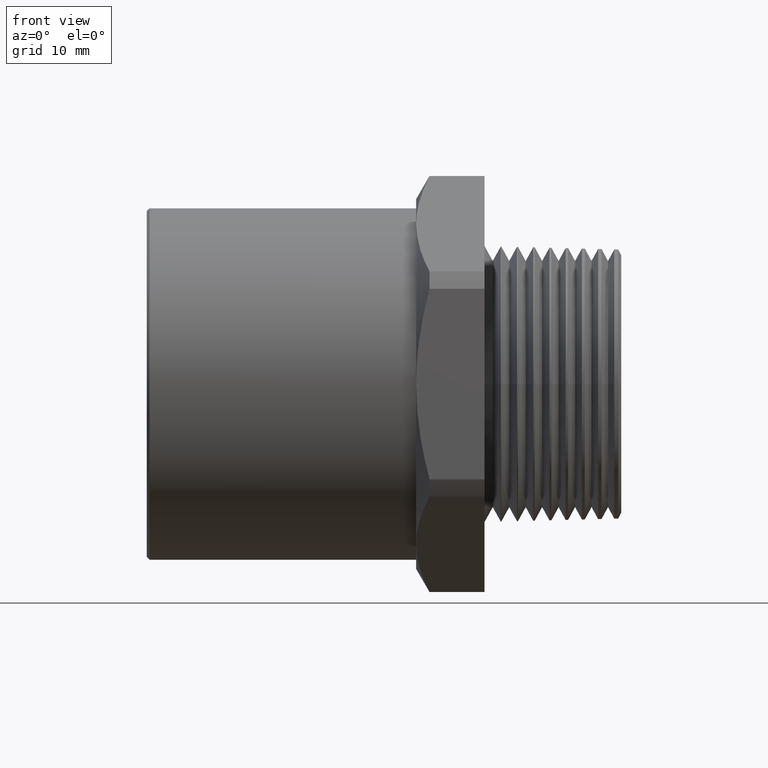
[diagram: clean part render]
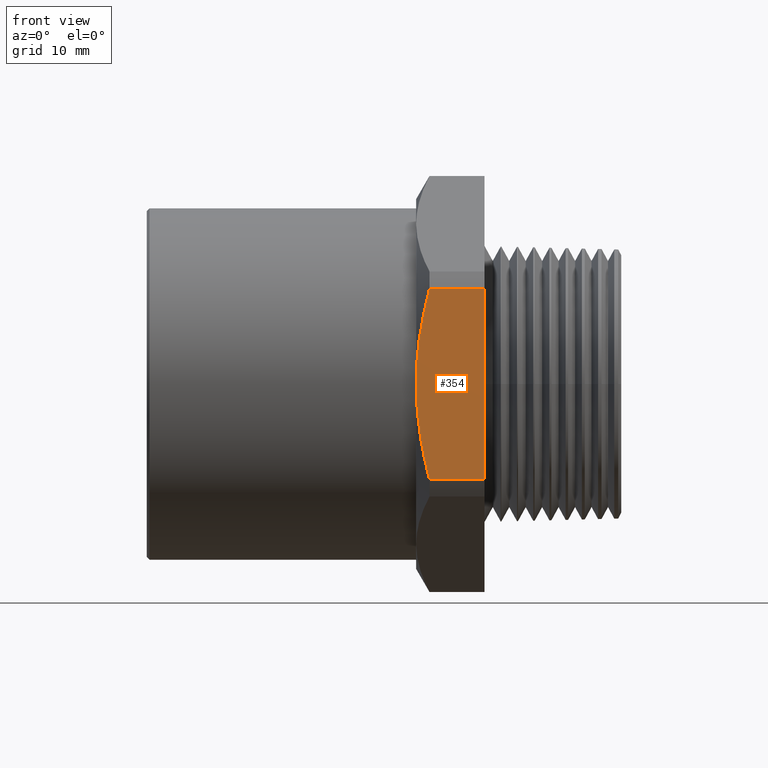
[diagram: same view with one face highlighted and labeled with its STEP entity id]
A machine part, front view. The second image highlights one B-rep face of the part: STEP entity #354.
In plain terms, the highlighted planar face has unit normal (0, 1, 0).
Its self-contained STEP definition (entity closure, byte-faithful):
#319 = EDGE_CURVE ( 'NONE', #347, #345, #1136, .T. ) ;
#330 = VERTEX_POINT ( 'NONE', #1174 ) ;
#345 = VERTEX_POINT ( 'NONE', #1151 ) ;
#347 = VERTEX_POINT ( 'NONE', #1149 ) ;
#354 = ADVANCED_FACE ( 'NONE', ( #1201 ), #1199, .F. ) ;
#355 = EDGE_LOOP ( 'NONE', ( #2654, #415, #416, #418, #419 ) ) ;
#378 = VERTEX_POINT ( 'NONE', #1262 ) ;
#389 = VERTEX_POINT ( 'NONE', #1300 ) ;
#391 = EDGE_CURVE ( 'NONE', #389, #330, #1299, .T. ) ;
#414 = EDGE_CURVE ( 'NONE', #330, #378, #1355, .T. ) ;
#415 = ORIENTED_EDGE ( 'NONE', *, *, #391, .F. ) ;
#416 = ORIENTED_EDGE ( 'NONE', *, *, #417, .T. ) ;
#417 = EDGE_CURVE ( 'NONE', #389, #347, #1346, .T. ) ;
#418 = ORIENTED_EDGE ( 'NONE', *, *, #319, .T. ) ;
#419 = ORIENTED_EDGE ( 'NONE', *, *, #420, .F. ) ;
#420 = EDGE_CURVE ( 'NONE', #378, #345, #1340, .T. ) ;
#1133 = DIRECTION ( 'NONE',  ( -1.000000000000000000, 0.0000000000000000000, 0.0000000000000000000 ) ) ;
#1134 = VECTOR ( 'NONE', #1133, 39.37007874015748100 ) ;
#1135 = CARTESIAN_POINT ( 'NONE',  ( 1.707522221140072500, -0.6900000000000000600, 0.3556178602095231300 ) ) ;
#1136 = LINE ( 'NONE', #1135, #1134 ) ;
#1149 = CARTESIAN_POINT ( 'NONE',  ( -0.5100000000000000100, -0.6900000000000001700, 0.3556178602095231300 ) ) ;
#1151 = CARTESIAN_POINT ( 'NONE',  ( -0.7152035392823947700, -0.6900000000000000600, 0.3556178602095231300 ) ) ;
#1174 = CARTESIAN_POINT ( 'NONE',  ( -0.7152035392823947700, -0.6900000000000001700, -0.3556178602095228500 ) ) ;
#1186 = DIRECTION ( 'NONE',  ( 0.0000000000000000000, 0.0000000000000000000, 1.000000000000000000 ) ) ;
#1187 = DIRECTION ( 'NONE',  ( 0.0000000000000000000, 1.000000000000000000, 0.0000000000000000000 ) ) ;
#1188 = CARTESIAN_POINT ( 'NONE',  ( 1.707522221140072500, -0.6900000000000001700, 0.3556178602095228500 ) ) ;
#1189 = AXIS2_PLACEMENT_3D ( 'NONE', #1188, #1187, #1186 ) ;
#1199 = PLANE ( 'NONE',  #1189 ) ;
#1201 = FACE_OUTER_BOUND ( 'NONE', #355, .T. ) ;
#1262 = CARTESIAN_POINT ( 'NONE',  ( -0.7649999999999999000, -0.6900000000000001700, 0.0000000000000000000 ) ) ;
#1296 = DIRECTION ( 'NONE',  ( -1.000000000000000000, 0.0000000000000000000, 0.0000000000000000000 ) ) ;
#1297 = VECTOR ( 'NONE', #1296, 39.37007874015748100 ) ;
#1298 = CARTESIAN_POINT ( 'NONE',  ( 1.707522221140072500, -0.6900000000000001700, -0.3556178602095228500 ) ) ;
#1299 = LINE ( 'NONE', #1298, #1297 ) ;
#1300 = CARTESIAN_POINT ( 'NONE',  ( -0.5100000000000000100, -0.6900000000000001700, -0.3556178602095228500 ) ) ;
#1332 = CARTESIAN_POINT ( 'NONE',  ( -0.7304551741844054200, -0.6900000000000002800, 0.2979551465837126400 ) ) ;
#1333 = CARTESIAN_POINT ( 'NONE',  ( -0.7429895187840407400, -0.6900000000000003900, 0.2395359215269886600 ) ) ;
#1334 = CARTESIAN_POINT ( 'NONE',  ( -0.7559980328978638300, -0.6900000000000001700, 0.1502942739956078500 ) ) ;
#1335 = CARTESIAN_POINT ( 'NONE',  ( -0.7593724806275524700, -0.6900000000000001700, 0.1201524000786027000 ) ) ;
#1336 = CARTESIAN_POINT ( 'NONE',  ( -0.7638699066180104600, -0.6900000000000001700, 0.05996282694354809100 ) ) ;
#1337 = CARTESIAN_POINT ( 'NONE',  ( -0.7649999999999996800, -0.6900000000000002800, 0.02994336490333611800 ) ) ;
#1338 = CARTESIAN_POINT ( 'NONE',  ( -0.7649999999999999000, -0.6900000000000001700, 0.0000000000000000000 ) ) ;
#1340 = B_SPLINE_CURVE_WITH_KNOTS ( 'NONE', 3,
 ( #1338, #1337, #1336, #1335, #1334, #1333, #1332, #1388 ),
 .UNSPECIFIED., .F., .F.,
 ( 4, 2, 2, 4 ),
 ( 0.02788186748489466000, 0.03015896873469194100, 0.03243606998448921700, 0.03699027248408377800 ),
 .UNSPECIFIED. ) ;
#1343 = DIRECTION ( 'NONE',  ( 0.0000000000000000000, 0.0000000000000000000, 1.000000000000000000 ) ) ;
#1344 = VECTOR ( 'NONE', #1343, 39.37007874015748100 ) ;
#1345 = CARTESIAN_POINT ( 'NONE',  ( -0.5100000000000000100, -0.6900000000000001700, 0.3556178602095228500 ) ) ;
#1346 = LINE ( 'NONE', #1345, #1344 ) ;
#1347 = CARTESIAN_POINT ( 'NONE',  ( -0.7649999999999999000, -0.6900000000000001700, 0.0000000000000000000 ) ) ;
#1348 = CARTESIAN_POINT ( 'NONE',  ( -0.7649999999999997900, -0.6900000000000002800, -0.05990259101717600900 ) ) ;
#1349 = CARTESIAN_POINT ( 'NONE',  ( -0.7604317268458005200, -0.6900000000000003900, -0.1194975680680714900 ) ) ;
#1350 = CARTESIAN_POINT ( 'NONE',  ( -0.7475428215337696100, -0.6900000000000001700, -0.2084835539341731700 ) ) ;
#1351 = CARTESIAN_POINT ( 'NONE',  ( -0.7422528866681005200, -0.6900000000000001700, -0.2380786409170302400 ) ) ;
#1352 = CARTESIAN_POINT ( 'NONE',  ( -0.7299203108328614600, -0.6900000000000001700, -0.2971507928516297600 ) ) ;
#1353 = CARTESIAN_POINT ( 'NONE',  ( -0.7228917546532506200, -0.6900000000000002800, -0.3265505920725992900 ) ) ;
#1354 = CARTESIAN_POINT ( 'NONE',  ( -0.7152035392823947700, -0.6900000000000001700, -0.3556178602095228500 ) ) ;
#1355 = B_SPLINE_CURVE_WITH_KNOTS ( 'NONE', 3,
 ( #1354, #1353, #1352, #1351, #1350, #1349, #1348, #1347 ),
 .UNSPECIFIED., .F., .F.,
 ( 4, 2, 2, 4 ),
 ( 0.01877105009268439200, 0.02104875444073696000, 0.02332645878878952800, 0.02788186748489466000 ),
 .UNSPECIFIED. ) ;
#1388 = CARTESIAN_POINT ( 'NONE',  ( -0.7152035392823947700, -0.6900000000000000600, 0.3556178602095231300 ) ) ;
#2654 = ORIENTED_EDGE ( 'NONE', *, *, #414, .F. ) ;